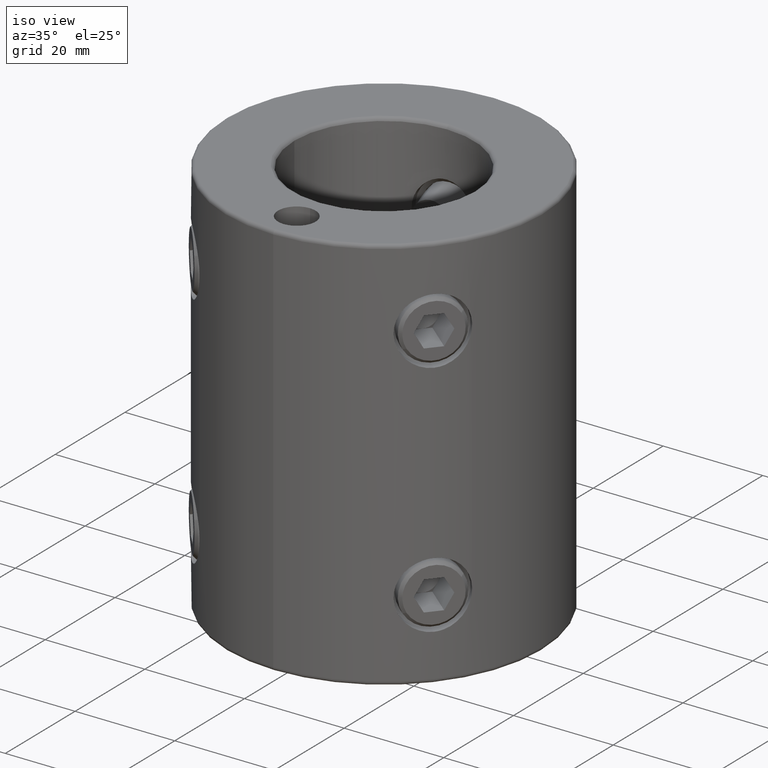
[diagram: clean part render]
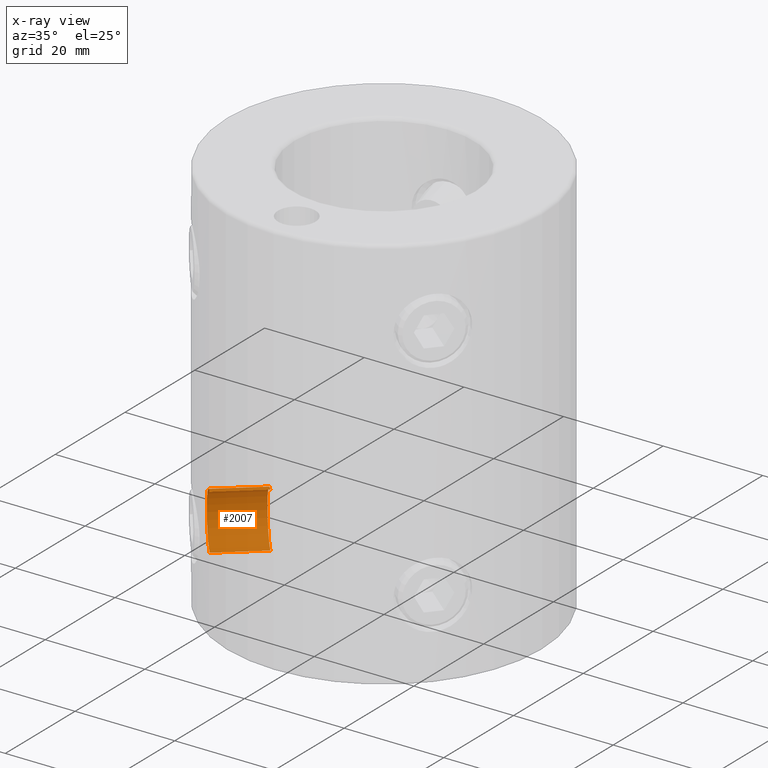
[diagram: x-ray — body ghosted, one internal face saturated and labeled with its STEP entity id]
A machine part, iso view, then the same camera in x-ray: the body is ghosted and one INTERNAL B-rep face — a face not visible from any outside direction — is saturated and labeled: STEP entity #2007.
In plain terms, the highlighted cylindrical surface (edge-blend (fillet) strip) has radius 5.5175 mm, axis along (-0.766, -0.6428, 0).
Its self-contained STEP definition (entity closure, byte-faithful):
#1193=EDGE_CURVE('NONE',#2513,#2927,#3310,.T.);
#1315=EDGE_CURVE('NONE',#2887,#2927,#3448,.T.);
#1967=EDGE_CURVE('NONE',#2223,#2513,#4174,.T.);
#2007=ADVANCED_FACE('NONE',(#4220),#4221,.F.);
#2015=EDGE_CURVE('NONE',#2887,#2223,#4229,.T.);
#2223=VERTEX_POINT('NONE',#4469);
#2513=VERTEX_POINT('NONE',#4804);
#2887=VERTEX_POINT('NONE',#5227);
#2927=VERTEX_POINT('NONE',#5270);
#3310=CIRCLE('',#5765,5.51750000000001);
#3448=LINE('',#6069,#6070);
#4174=LINE('',#7390,#7391);
#4220=FACE_OUTER_BOUND('',#7446,.T.);
#4221=CYLINDRICAL_SURFACE('',#7447,5.51750000000001);
#4229=CIRCLE('',#7461,5.51750000000001);
#4469=CARTESIAN_POINT('',(-14.369078641804,-12.0570885886953,-58.4324999999999));
#4804=CARTESIAN_POINT('',(-22.037183517425,-18.4913925616576,-58.4324999999998));
#5227=CARTESIAN_POINT('',(-14.3690786418041,-12.0570885886953,-69.4674999999999));
#5270=CARTESIAN_POINT('',(-22.037183517425,-18.4913925616576,-69.4674999999998));
#5765=AXIS2_PLACEMENT_3D('',#10140,#10141,#10142);
#6069=CARTESIAN_POINT('',(-28.9044885364769,-24.253745670326,-69.4674999999998));
#6070=VECTOR('',#10314,1000.0);
#7390=CARTESIAN_POINT('',(-28.9044885364769,-24.253745670326,-58.4324999999998));
#7391=VECTOR('',#11171,1000.0);
#7446=EDGE_LOOP('',(#11232,#11233,#11234,#11235));
#7447=AXIS2_PLACEMENT_3D('',#11236,#11237,#11238);
#7461=AXIS2_PLACEMENT_3D('',#11244,#11245,#11246);
#10140=CARTESIAN_POINT('',(-22.037183517425,-18.4913925616576,-63.9499999999998));
#10141=DIRECTION('',(-0.766044443118975,-0.642787609686543,5.2986418016568E-015));
#10142=DIRECTION('',(-6.91688563144353E-015,-7.35217059381497E-031,-1.0));
#10314=DIRECTION('',(-0.766044443118975,-0.642787609686543,5.49557156928827E-015));
#11171=DIRECTION('',(-0.766044443118975,-0.642787609686543,5.49557156928827E-015));
#11232=ORIENTED_EDGE('',*,*,#2015,.T.);
#11233=ORIENTED_EDGE('',*,*,#1967,.T.);
#11234=ORIENTED_EDGE('',*,*,#1193,.T.);
#11235=ORIENTED_EDGE('',*,*,#1315,.F.);
#11236=CARTESIAN_POINT('',(-28.9044885364769,-24.253745670326,-63.9499999999998));
#11237=DIRECTION('',(-0.766044443118975,-0.642787609686543,5.2986418016568E-015));
#11238=DIRECTION('',(-6.91688563144353E-015,-7.35217059381497E-031,-1.0));
#11244=CARTESIAN_POINT('',(-14.3690786418041,-12.0570885886953,-63.9499999999999));
#11245=DIRECTION('',(0.766044443118975,0.642787609686543,-4.9751984926438E-015));
#11246=DIRECTION('',(0.642787609686543,-0.766044443118975,-5.03046227741348E-015));